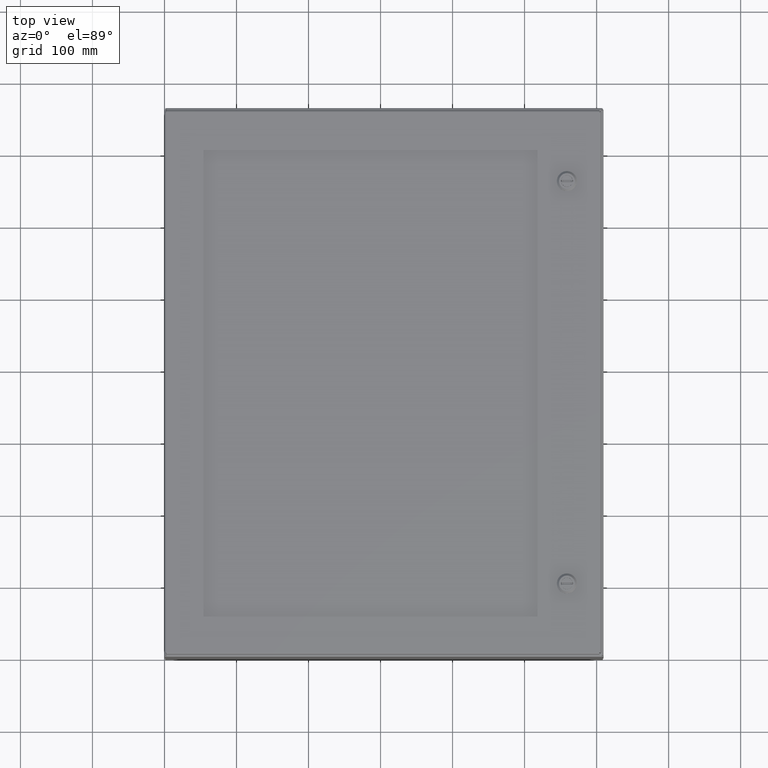
[diagram: clean part render]
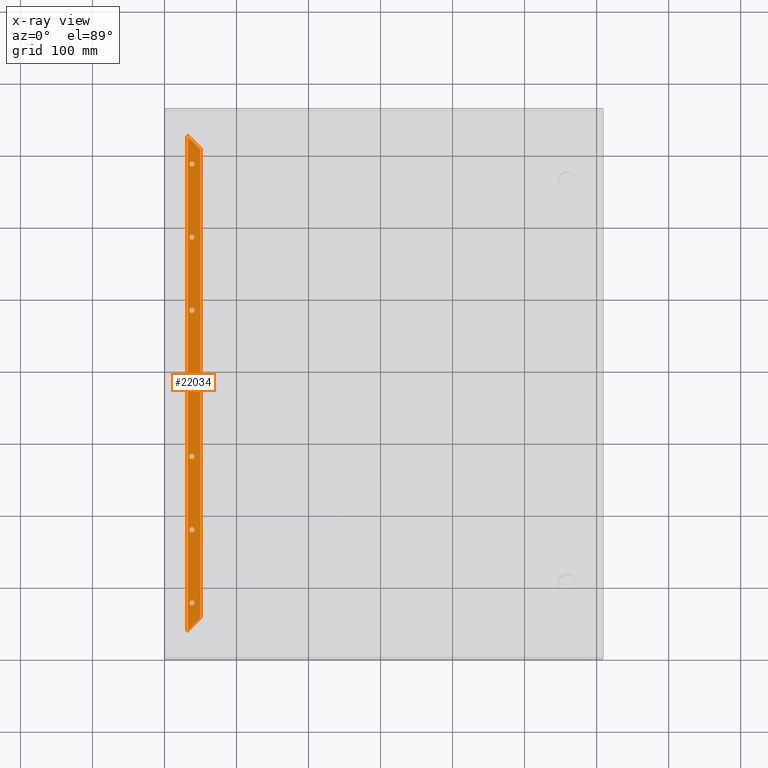
[diagram: x-ray — body ghosted, one internal face saturated and labeled with its STEP entity id]
A machine part, top view, then the same camera in x-ray: the body is ghosted and one INTERNAL B-rep face — a face not visible from any outside direction — is saturated and labeled: STEP entity #22034.
In plain terms, the highlighted planar face has unit normal (-0, 0, -1).
Its self-contained STEP definition (entity closure, byte-faithful):
#21528=CARTESIAN_POINT('',(0.483124999999996,21.562500000000000,0.0));
#21529=VERTEX_POINT('',#21528);
#21530=CARTESIAN_POINT('',(0.342499999999995,21.562500000000000,0.0));
#21531=DIRECTION('',(0.0,0.0,1.0));
#21532=DIRECTION('',(-1.0,0.0,0.0));
#21533=AXIS2_PLACEMENT_3D('',#21530,#21531,#21532);
#21534=CIRCLE('',#21533,0.140625000000000);
#21535=EDGE_CURVE('',#21529,#21529,#21534,.T.);
#21556=CARTESIAN_POINT('',(0.483124999999996,17.562500000000000,0.0));
#21557=VERTEX_POINT('',#21556);
#21558=CARTESIAN_POINT('',(0.342499999999995,17.562500000000000,0.0));
#21559=DIRECTION('',(0.0,0.0,1.0));
#21560=DIRECTION('',(-1.0,0.0,0.0));
#21561=AXIS2_PLACEMENT_3D('',#21558,#21559,#21560);
#21562=CIRCLE('',#21561,0.140625000000000);
#21563=EDGE_CURVE('',#21557,#21557,#21562,.T.);
#21584=CARTESIAN_POINT('',(0.483124999999995,13.562500000000000,0.0));
#21585=VERTEX_POINT('',#21584);
#21586=CARTESIAN_POINT('',(0.342499999999995,13.562500000000000,0.0));
#21587=DIRECTION('',(0.0,0.0,1.0));
#21588=DIRECTION('',(-1.0,0.0,0.0));
#21589=AXIS2_PLACEMENT_3D('',#21586,#21587,#21588);
#21590=CIRCLE('',#21589,0.140625000000000);
#21591=EDGE_CURVE('',#21585,#21585,#21590,.T.);
#21612=CARTESIAN_POINT('',(0.483124999999995,9.562500000000000,0.0));
#21613=VERTEX_POINT('',#21612);
#21614=CARTESIAN_POINT('',(0.342499999999996,9.562500000000000,0.0));
#21615=DIRECTION('',(0.0,0.0,1.0));
#21616=DIRECTION('',(-1.0,0.0,0.0));
#21617=AXIS2_PLACEMENT_3D('',#21614,#21615,#21616);
#21618=CIRCLE('',#21617,0.140625000000000);
#21619=EDGE_CURVE('',#21613,#21613,#21618,.T.);
#21640=CARTESIAN_POINT('',(0.483124999999995,5.562499999999999,0.0));
#21641=VERTEX_POINT('',#21640);
#21642=CARTESIAN_POINT('',(0.342499999999995,5.562499999999999,0.0));
#21643=DIRECTION('',(0.0,0.0,1.0));
#21644=DIRECTION('',(-1.0,0.0,0.0));
#21645=AXIS2_PLACEMENT_3D('',#21642,#21643,#21644);
#21646=CIRCLE('',#21645,0.140625000000000);
#21647=EDGE_CURVE('',#21641,#21641,#21646,.T.);
#21802=CARTESIAN_POINT('',(0.105249999999987,27.082250000000002,0.0));
#21803=VERTEX_POINT('',#21802);
#21852=CARTESIAN_POINT('',(0.105250000000000,0.042750000000001,0.0));
#21853=VERTEX_POINT('',#21852);
#21933=CARTESIAN_POINT('',(0.105250000000000,0.042749999999998,0.0));
#21934=DIRECTION('',(0.0,1.0,0.0));
#21935=VECTOR('',#21934,27.039500000000004);
#21936=LINE('',#21933,#21935);
#21937=EDGE_CURVE('',#21853,#21803,#21936,.T.);
#21949=CARTESIAN_POINT('',(0.812500000000002,0.750000000000000,0.0));
#21950=VERTEX_POINT('',#21949);
#21951=CARTESIAN_POINT('',(0.105250000000000,0.042750000000001,0.0));
#21952=DIRECTION('',(0.707106781186549,0.707106781186546,0.0));
#21953=VECTOR('',#21952,1.000202541988372);
#21954=LINE('',#21951,#21953);
#21955=EDGE_CURVE('',#21853,#21950,#21954,.T.);
#21974=CARTESIAN_POINT('',(0.395830625536731,20.234399997006385,0.0));
#21975=DIRECTION('',(0.0,0.0,1.0));
#21976=DIRECTION('',(1.0,0.0,0.0));
#21977=AXIS2_PLACEMENT_3D('',#21974,#21975,#21976);
#21978=PLANE('',#21977);
#21979=ORIENTED_EDGE('',*,*,#21937,.T.);
#21980=CARTESIAN_POINT('',(0.812499999999991,26.375000000000004,0.0));
#21981=VERTEX_POINT('',#21980);
#21982=CARTESIAN_POINT('',(0.812499999999991,26.375000000000004,0.0));
#21983=DIRECTION('',(-0.707106781186550,0.707106781186545,0.0));
#21984=VECTOR('',#21983,1.000202541988372);
#21985=LINE('',#21982,#21984);
#21986=EDGE_CURVE('',#21981,#21803,#21985,.T.);
#21987=ORIENTED_EDGE('',*,*,#21986,.F.);
#21988=CARTESIAN_POINT('',(0.812500000000002,0.750000000000000,0.0));
#21989=DIRECTION('',(0.0,1.0,0.0));
#21990=VECTOR('',#21989,25.625000000000004);
#21991=LINE('',#21988,#21990);
#21992=EDGE_CURVE('',#21950,#21981,#21991,.T.);
#21993=ORIENTED_EDGE('',*,*,#21992,.F.);
#21994=ORIENTED_EDGE('',*,*,#21955,.F.);
#21995=EDGE_LOOP('',(#21979,#21987,#21993,#21994));
#21996=FACE_OUTER_BOUND('',#21995,.T.);
#21997=ORIENTED_EDGE('',*,*,#21535,.T.);
#21998=EDGE_LOOP('',(#21997));
#21999=FACE_BOUND('',#21998,.T.);
#22000=ORIENTED_EDGE('',*,*,#21563,.T.);
#22001=EDGE_LOOP('',(#22000));
#22002=FACE_BOUND('',#22001,.T.);
#22003=ORIENTED_EDGE('',*,*,#21591,.T.);
#22004=EDGE_LOOP('',(#22003));
#22005=FACE_BOUND('',#22004,.T.);
#22006=ORIENTED_EDGE('',*,*,#21619,.T.);
#22007=EDGE_LOOP('',(#22006));
#22008=FACE_BOUND('',#22007,.T.);
#22009=ORIENTED_EDGE('',*,*,#21647,.T.);
#22010=EDGE_LOOP('',(#22009));
#22011=FACE_BOUND('',#22010,.T.);
#22012=CARTESIAN_POINT('',(0.483124999999995,25.562500000000004,0.0));
#22013=VERTEX_POINT('',#22012);
#22014=CARTESIAN_POINT('',(0.342499999999995,25.562500000000004,0.0));
#22015=DIRECTION('',(0.0,0.0,1.0));
#22016=DIRECTION('',(-1.0,0.0,0.0));
#22017=AXIS2_PLACEMENT_3D('',#22014,#22015,#22016);
#22018=CIRCLE('',#22017,0.140625000000000);
#22019=EDGE_CURVE('',#22013,#22013,#22018,.T.);
#22020=ORIENTED_EDGE('',*,*,#22019,.T.);
#22021=EDGE_LOOP('',(#22020));
#22022=FACE_BOUND('',#22021,.T.);
#22023=CARTESIAN_POINT('',(0.483124999999995,1.562500000000000,0.0));
#22024=VERTEX_POINT('',#22023);
#22025=CARTESIAN_POINT('',(0.342499999999995,1.562500000000000,0.0));
#22026=DIRECTION('',(0.0,0.0,1.0));
#22027=DIRECTION('',(-1.0,0.0,0.0));
#22028=AXIS2_PLACEMENT_3D('',#22025,#22026,#22027);
#22029=CIRCLE('',#22028,0.140625000000000);
#22030=EDGE_CURVE('',#22024,#22024,#22029,.T.);
#22031=ORIENTED_EDGE('',*,*,#22030,.T.);
#22032=EDGE_LOOP('',(#22031));
#22033=FACE_BOUND('',#22032,.T.);
#22034=ADVANCED_FACE('',(#21996,#21999,#22002,#22005,#22008,#22011,#22022,#22033),#21978,.F.);